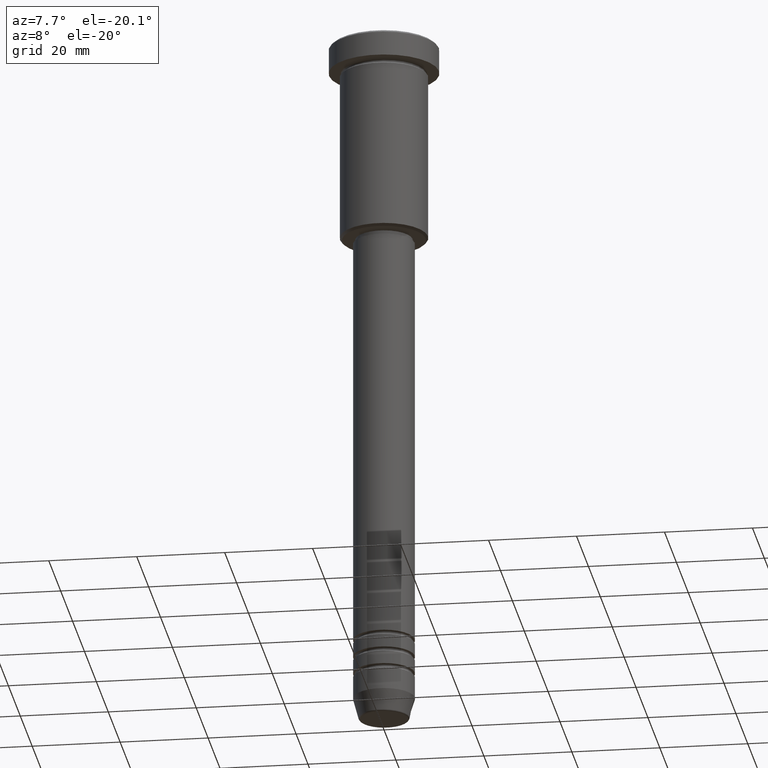
[diagram: clean part render]
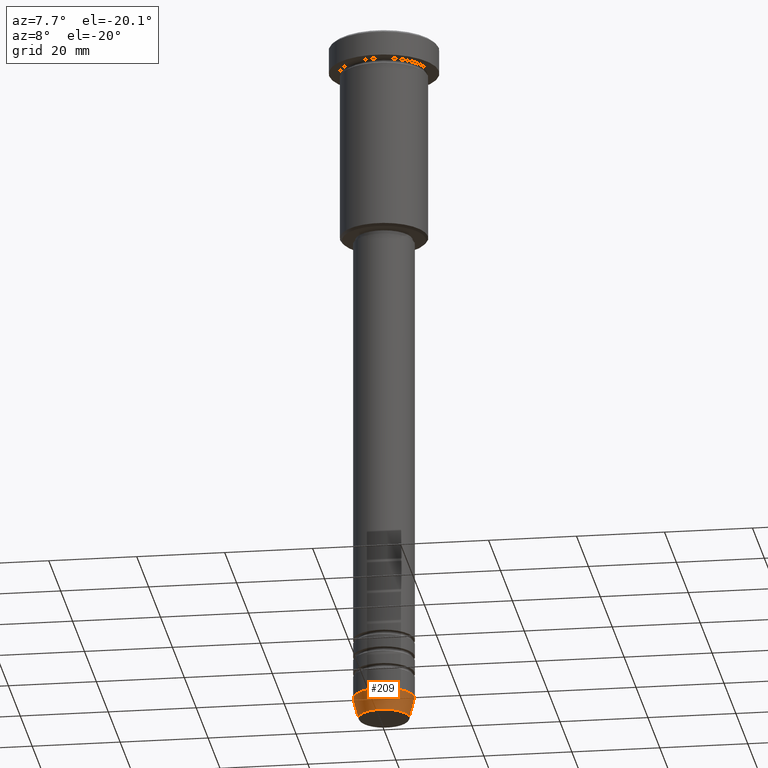
[diagram: same view with one face highlighted and labeled with its STEP entity id]
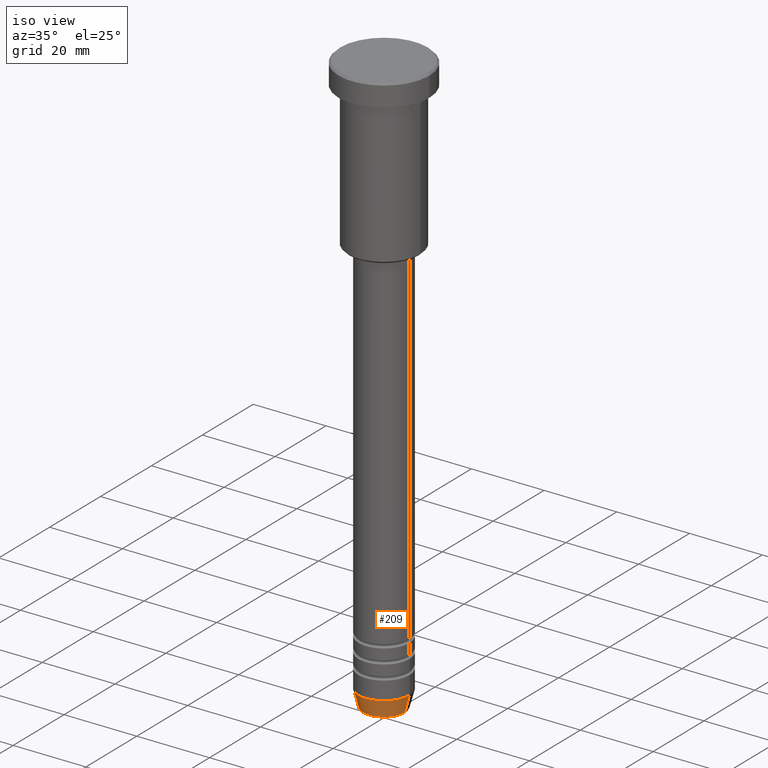
[diagram: same view with one face highlighted and labeled with its STEP entity id]
A machine part, auxiliary view. The second image highlights one B-rep face of the part: STEP entity #209.
A second angle (iso view) of the same face is appended — the face is thin or edge-on in the first view.
In plain terms, the highlighted conical surface has half-angle 15 deg.
Its self-contained STEP definition (entity closure, byte-faithful):
#33 = DIRECTION ( 'NONE',  ( -0.000000000000000000, -0.000000000000000000, 1.000000000000000000 ) ) ;
#36 = CIRCLE ( 'NONE', #867, 5.759553456999435994 ) ;
#65 = ORIENTED_EDGE ( 'NONE', *, *, #117, .F. ) ;
#69 = AXIS2_PLACEMENT_3D ( 'NONE', #158, #33, #355 ) ;
#105 = CARTESIAN_POINT ( 'NONE',  ( -7.000000000000000000, 8.572527594031473190E-16, -156.0000000000000284 ) ) ;
#117 = EDGE_CURVE ( 'NONE', #1047, #120, #1106, .T. ) ;
#120 = VERTEX_POINT ( 'NONE', #105 ) ;
#158 = CARTESIAN_POINT ( 'NONE',  ( 0.000000000000000000, 0.000000000000000000, -156.0000000000000284 ) ) ;
#163 = DIRECTION ( 'NONE',  ( -0.000000000000000000, -0.000000000000000000, 1.000000000000000000 ) ) ;
#169 = CONICAL_SURFACE ( 'NONE', #69, 7.000000000000000000, 0.2617993877991500740 ) ;
#203 = DIRECTION ( 'NONE',  ( -0.000000000000000000, -0.000000000000000000, 1.000000000000000000 ) ) ;
#206 = CIRCLE ( 'NONE', #331, 7.000000000000000000 ) ;
#209 = ADVANCED_FACE ( 'NONE', ( #698 ), #169, .T. ) ;
#293 = EDGE_LOOP ( 'NONE', ( #65, #1034, #787, #538 ) ) ;
#331 = AXIS2_PLACEMENT_3D ( 'NONE', #813, #163, #714 ) ;
#338 = EDGE_CURVE ( 'NONE', #120, #1001, #206, .T. ) ;
#355 = DIRECTION ( 'NONE',  ( 1.000000000000000000, 0.000000000000000000, 0.000000000000000000 ) ) ;
#392 = CARTESIAN_POINT ( 'NONE',  ( -5.759553456999435994, 7.812973149831951773E-16, -160.6294095225512706 ) ) ;
#538 = ORIENTED_EDGE ( 'NONE', *, *, #338, .F. ) ;
#556 = CARTESIAN_POINT ( 'NONE',  ( -7.000000000000000000, 8.572527594031473190E-16, -156.0000000000000284 ) ) ;
#560 = DIRECTION ( 'NONE',  ( 1.000000000000000000, 0.000000000000000000, 0.000000000000000000 ) ) ;
#576 = DIRECTION ( 'NONE',  ( 0.2588190451025213501, 0.000000000000000000, 0.9659258262890680902 ) ) ;
#657 = DIRECTION ( 'NONE',  ( -0.2588190451025213501, 3.169619151431772337E-17, 0.9659258262890680902 ) ) ;
#667 = VECTOR ( 'NONE', #576, 1000.000000000000000 ) ;
#697 = LINE ( 'NONE', #1059, #667 ) ;
#698 = FACE_OUTER_BOUND ( 'NONE', #293, .T. ) ;
#714 = DIRECTION ( 'NONE',  ( 1.000000000000000000, 0.000000000000000000, 0.000000000000000000 ) ) ;
#735 = VECTOR ( 'NONE', #657, 1000.000000000000000 ) ;
#787 = ORIENTED_EDGE ( 'NONE', *, *, #1087, .T. ) ;
#813 = CARTESIAN_POINT ( 'NONE',  ( 0.000000000000000000, 0.000000000000000000, -156.0000000000000284 ) ) ;
#816 = CARTESIAN_POINT ( 'NONE',  ( 5.759553456999435994, 0.000000000000000000, -160.6294095225512706 ) ) ;
#867 = AXIS2_PLACEMENT_3D ( 'NONE', #1028, #203, #560 ) ;
#955 = EDGE_CURVE ( 'NONE', #1047, #974, #36, .T. ) ;
#974 = VERTEX_POINT ( 'NONE', #816 ) ;
#1001 = VERTEX_POINT ( 'NONE', #1054 ) ;
#1028 = CARTESIAN_POINT ( 'NONE',  ( 0.000000000000000000, 0.000000000000000000, -160.6294095225512706 ) ) ;
#1034 = ORIENTED_EDGE ( 'NONE', *, *, #955, .T. ) ;
#1047 = VERTEX_POINT ( 'NONE', #392 ) ;
#1054 = CARTESIAN_POINT ( 'NONE',  ( 7.000000000000000000, 0.000000000000000000, -156.0000000000000284 ) ) ;
#1059 = CARTESIAN_POINT ( 'NONE',  ( 7.000000000000000000, 0.000000000000000000, -156.0000000000000284 ) ) ;
#1087 = EDGE_CURVE ( 'NONE', #974, #1001, #697, .T. ) ;
#1106 = LINE ( 'NONE', #556, #735 ) ;